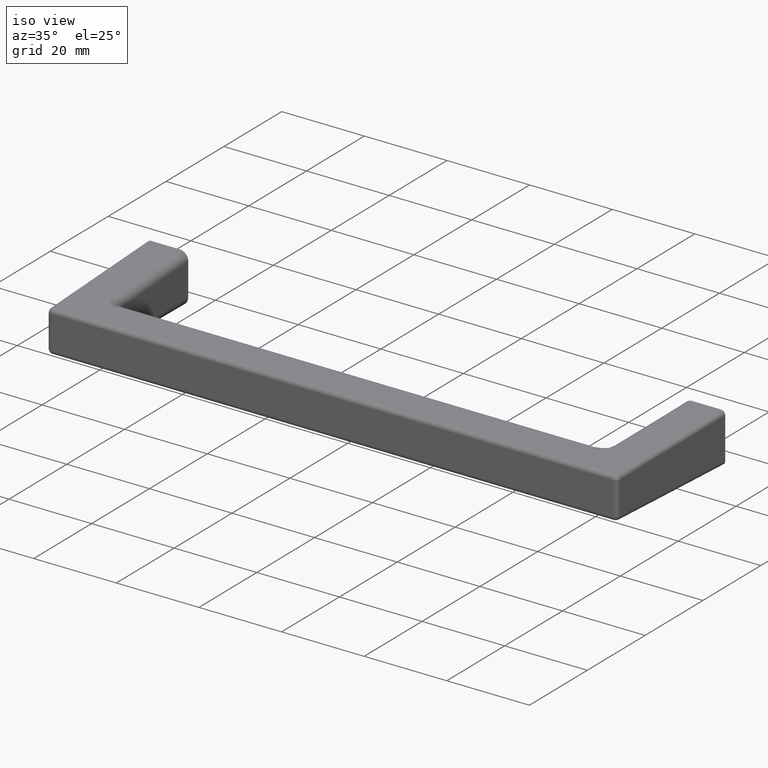
[diagram: clean part render]
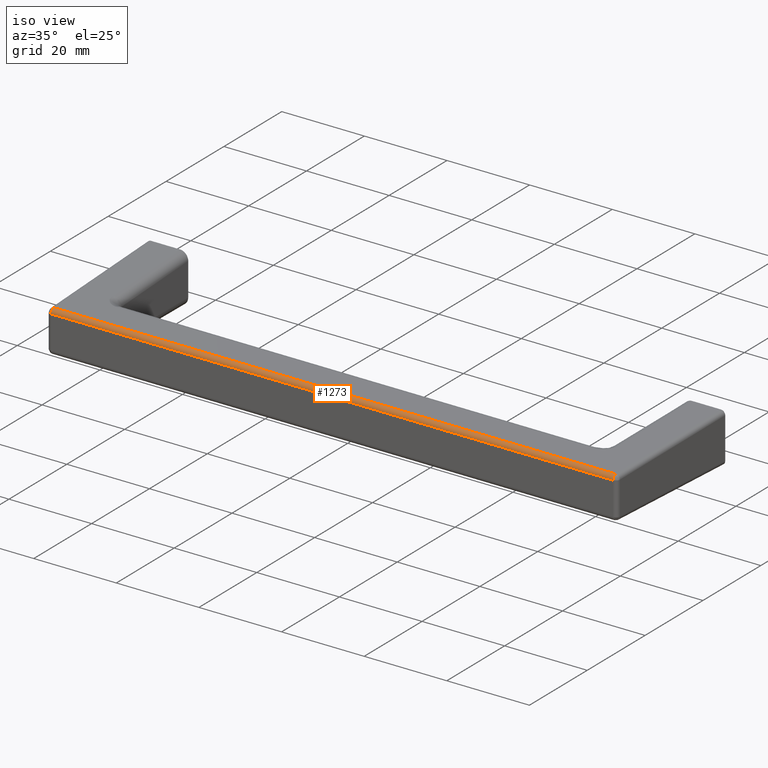
[diagram: same view with one face highlighted and labeled with its STEP entity id]
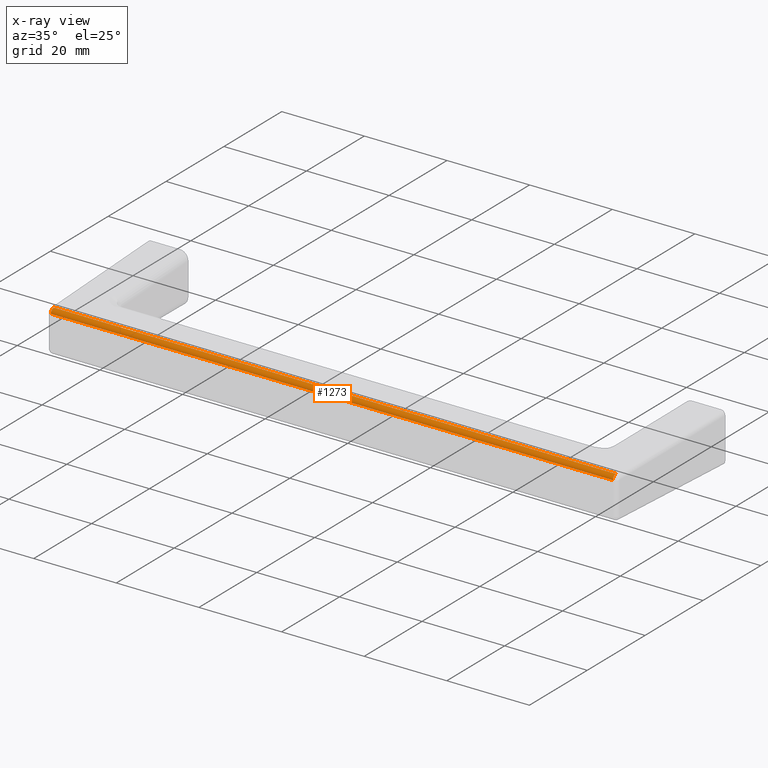
[diagram: x-ray of the same camera — body ghosted, the highlighted face saturated]
A machine part, iso view. The second image highlights one B-rep face of the part: STEP entity #1273.
The next image is the same camera in x-ray: the body ghosted, the highlighted face saturated — about 0% of this face is hidden behind the body in this view.
In plain terms, the highlighted face is a freeform B-spline surface patch.
Its self-contained STEP definition (entity closure, byte-faithful):
#932=CARTESIAN_POINT('',(68.027291863981603,-25.448281288146969,14.057089467914681));
#933=VERTEX_POINT('',#932);
#934=CARTESIAN_POINT('',(-68.027392049701703,-25.448281288146969,14.057089467914681));
#935=VERTEX_POINT('',#934);
#936=CARTESIAN_POINT('',(68.027291863981603,-25.448281288146969,14.057089467914681));
#937=CARTESIAN_POINT('',(-68.027392049701703,-25.448281288146969,14.057089467914681));
#938=QUASI_UNIFORM_CURVE('',1,(#936,#937),.UNSPECIFIED.,.F.,.U.);
#939=EDGE_CURVE('',#933,#935,#938,.T.);
#1137=CARTESIAN_POINT('',(68.027291863981603,-24.476048355387380,15.056703888567400));
#1138=VERTEX_POINT('',#1137);
#1149=CARTESIAN_POINT('',(68.027291863981603,-24.476048355387380,15.056703888567400));
#1150=CARTESIAN_POINT('',(68.027291863981631,-24.652885063162451,15.052241799606270));
#1151=CARTESIAN_POINT('',(68.027291863981617,-24.955377648730170,14.960189346690591));
#1152=CARTESIAN_POINT('',(68.027291863981603,-25.242543232534072,14.691930625628011));
#1153=CARTESIAN_POINT('',(68.027291863981688,-25.407380125580101,14.394537972518640));
#1154=CARTESIAN_POINT('',(68.027291863981574,-25.448416814161561,14.185697996535030));
#1155=CARTESIAN_POINT('',(68.027291863981603,-25.448281288146969,14.057089467914681));
#1156=B_SPLINE_CURVE_WITH_KNOTS('',3,(#1149,#1150,#1151,#1152,#1153,#1154,#1155),.UNSPECIFIED.,.F.,.U.,(4,1,1,1,4),(0.000000281912948,0.530487666106342,0.916238349149982,1.157381352026118,1.543175042063897),.UNSPECIFIED.);
#1157=EDGE_CURVE('',#1138,#933,#1156,.T.);
#1238=CARTESIAN_POINT('',(-71.428759147543786,-25.448243211211139,14.048362932416310));
#1239=CARTESIAN_POINT('',(71.513693139269733,-25.448243211211139,14.048362932416310));
#1240=CARTESIAN_POINT('',(-71.428759147543801,-25.457279803254085,15.083853816385570));
#1241=CARTESIAN_POINT('',(71.513693139269733,-25.457279803254085,15.083853816385570));
#1242=CARTESIAN_POINT('',(-71.428759147543786,-24.422104339839098,15.056746792890239));
#1243=CARTESIAN_POINT('',(71.513693139269733,-24.422104339839098,15.056746792890239));
#1251=(BOUNDED_SURFACE()B_SPLINE_SURFACE(1,2,((#1238,#1240,#1242),(#1239,#1241,#1243)),.UNSPECIFIED.,.F.,.F.,.U.)B_SPLINE_SURFACE_WITH_KNOTS((2,2),(3,3),(0.0,142.942452286813510),(0.0,1.0),.UNSPECIFIED.)GEOMETRIC_REPRESENTATION_ITEM()RATIONAL_B_SPLINE_SURFACE(((1.0,0.694658370458997,1.0),(1.0,0.694658370458997,1.0)))REPRESENTATION_ITEM('')SURFACE());
#1252=CARTESIAN_POINT('',(-68.027392049701703,-24.476048355387380,15.056703888567400));
#1253=VERTEX_POINT('',#1252);
#1254=CARTESIAN_POINT('',(-68.027392049701703,-24.476048355387380,15.056703888567400));
#1255=CARTESIAN_POINT('',(-68.027392049701731,-24.652885063162451,15.052241799606270));
#1256=CARTESIAN_POINT('',(-68.027392049701689,-24.955377648730192,14.960189346690600));
#1257=CARTESIAN_POINT('',(-68.027392049701731,-25.242543232534050,14.691930625628011));
#1258=CARTESIAN_POINT('',(-68.027392049701774,-25.407380125580101,14.394537972518640));
#1259=CARTESIAN_POINT('',(-68.027392049701746,-25.448416814161551,14.185697996535030));
#1260=CARTESIAN_POINT('',(-68.027392049701703,-25.448281288146969,14.057089467914681));
#1261=B_SPLINE_CURVE_WITH_KNOTS('',3,(#1254,#1255,#1256,#1257,#1258,#1259,#1260),.UNSPECIFIED.,.F.,.U.,(4,1,1,1,4),(0.000000281912948,0.530487666106342,0.916238349149982,1.157381352026118,1.543175042063897),.UNSPECIFIED.);
#1262=EDGE_CURVE('',#1253,#935,#1261,.T.);
#1263=ORIENTED_EDGE('',*,*,#1262,.T.);
#1264=ORIENTED_EDGE('',*,*,#939,.F.);
#1265=ORIENTED_EDGE('',*,*,#1157,.F.);
#1266=CARTESIAN_POINT('',(-68.027392049701703,-24.476048355387380,15.056703888567400));
#1267=CARTESIAN_POINT('',(68.027291863981603,-24.476048355387380,15.056703888567400));
#1268=QUASI_UNIFORM_CURVE('',1,(#1266,#1267),.UNSPECIFIED.,.F.,.U.);
#1269=EDGE_CURVE('',#1253,#1138,#1268,.T.);
#1270=ORIENTED_EDGE('',*,*,#1269,.F.);
#1271=EDGE_LOOP('',(#1263,#1264,#1265,#1270));
#1272=FACE_OUTER_BOUND('',#1271,.T.);
#1273=ADVANCED_FACE('',(#1272),#1251,.T.);